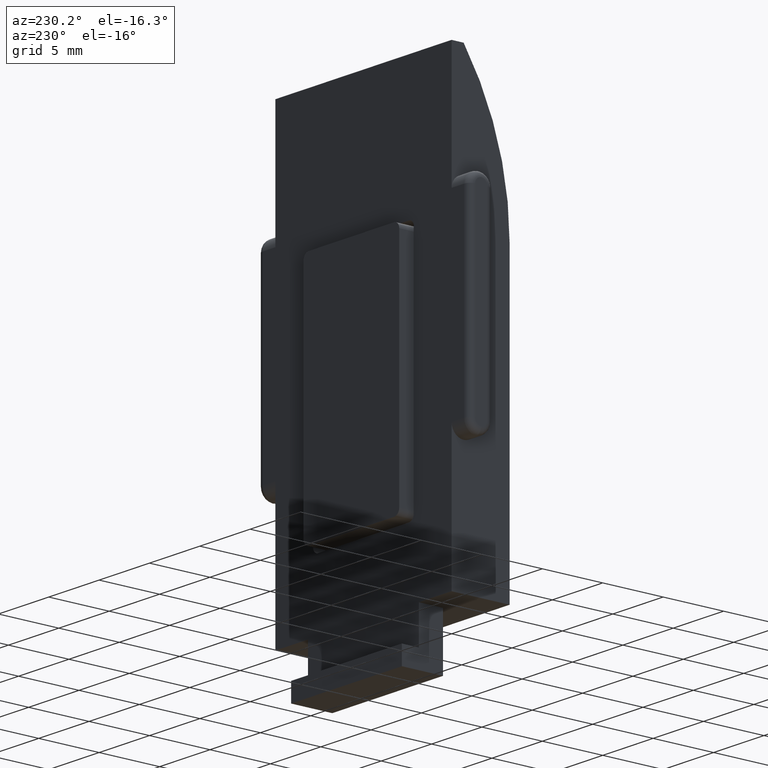
[diagram: clean part render]
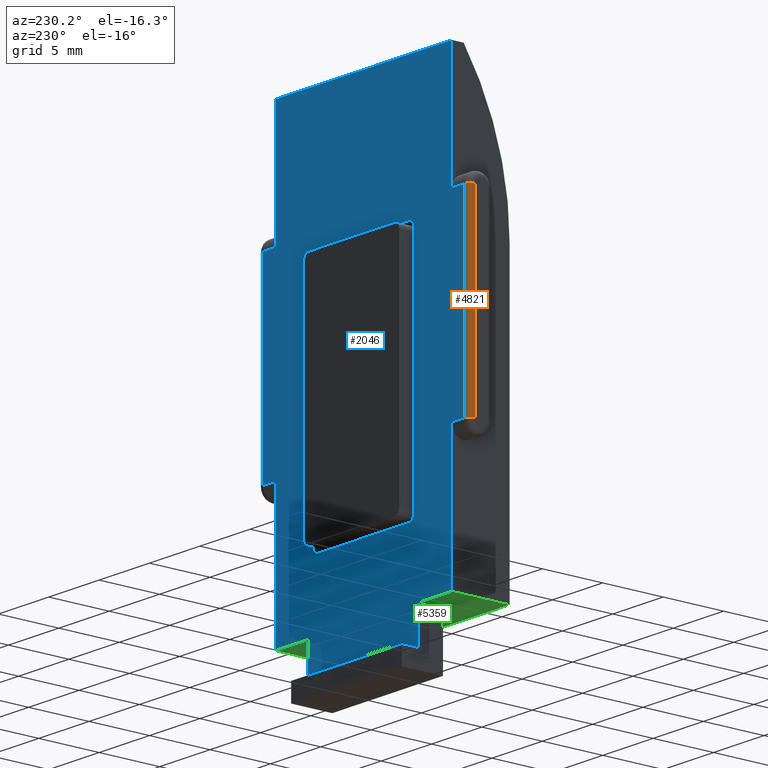
[diagram: same view with three faces highlighted in distinct colors, each labeled with its STEP entity id]
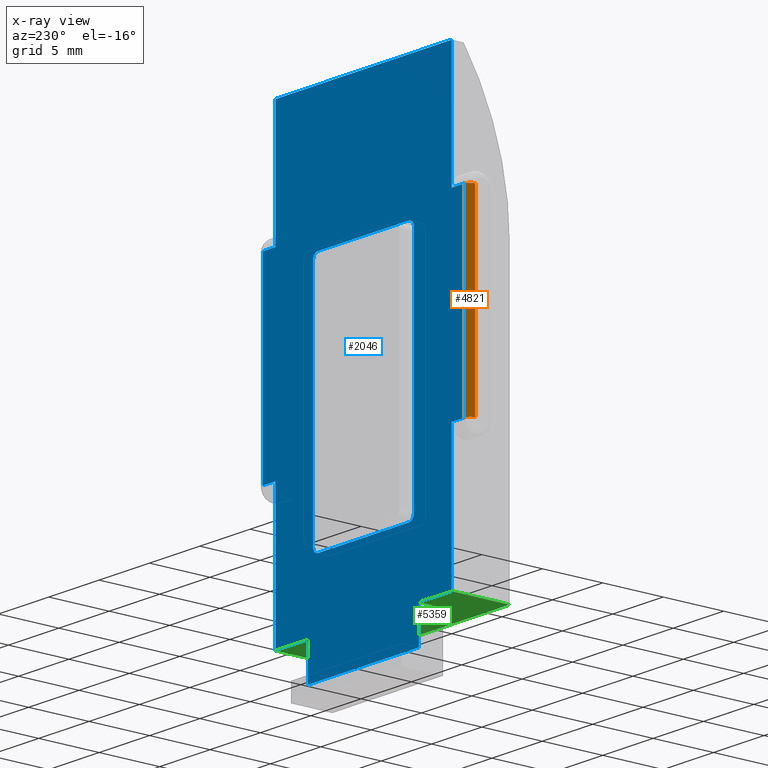
[diagram: x-ray of the same camera — body ghosted, the three highlighted faces saturated]
A machine part, auxiliary view with three faces highlighted in distinct colors.
The next image is the same camera in x-ray (body ghosted, the three faces saturated) — at least one of them is partly hidden behind the body in this view.
Their STEP definitions:

[orange] entity #4821 — the highlighted cylindrical surface (edge-blend (fillet) strip) has radius 0.5 mm, axis along (0, 0, -1).
#786 = CARTESIAN_POINT ( 'NONE',  ( -10.00000000000000200, 4.799999999999995400, 26.71000000000000100 ) ) ;
#976 = VERTEX_POINT ( 'NONE', #7767 ) ;
#1222 = CIRCLE ( 'NONE', #1319, 0.5000000000000004400 ) ;
#1319 = AXIS2_PLACEMENT_3D ( 'NONE', #2228, #3984, #6266 ) ;
#1465 = EDGE_LOOP ( 'NONE', ( #6194, #10480, #5885, #3326 ) ) ;
#2031 = DIRECTION ( 'NONE',  ( 0.0000000000000000000, 1.317178037947461600E-016, -1.000000000000000000 ) ) ;
#2228 = CARTESIAN_POINT ( 'NONE',  ( -10.00000000000000000, 4.299999999999996300, 11.21000000000000100 ) ) ;
#2344 = DIRECTION ( 'NONE',  ( 0.0000000000000000000, -1.317178037947461600E-016, 1.000000000000000000 ) ) ;
#2607 = DIRECTION ( 'NONE',  ( -0.0000000000000000000, 1.317178037947461600E-016, -1.000000000000000000 ) ) ;
#2966 = EDGE_CURVE ( 'NONE', #976, #7220, #3003, .T. ) ;
#3003 = LINE ( 'NONE', #9994, #4424 ) ;
#3326 = ORIENTED_EDGE ( 'NONE', *, *, #10086, .F. ) ;
#3336 = LINE ( 'NONE', #786, #7187 ) ;
#3439 = CARTESIAN_POINT ( 'NONE',  ( -10.50000000000000000, 4.299999999999996300, 11.21000000000000100 ) ) ;
#3498 = VERTEX_POINT ( 'NONE', #6458 ) ;
#3642 = CARTESIAN_POINT ( 'NONE',  ( -10.00000000000000000, 4.799999999999997200, 11.21000000000000100 ) ) ;
#3884 = DIRECTION ( 'NONE',  ( -1.000000000000000000, 0.0000000000000000000, 0.0000000000000000000 ) ) ;
#3984 = DIRECTION ( 'NONE',  ( 0.0000000000000000000, -0.0000000000000000000, 1.000000000000000000 ) ) ;
#4424 = VECTOR ( 'NONE', #2607, 1000.000000000000000 ) ;
#4570 = EDGE_CURVE ( 'NONE', #976, #3498, #9214, .T. ) ;
#4821 = ADVANCED_FACE ( 'NONE', ( #5727 ), #9573, .T. ) ;
#4934 = AXIS2_PLACEMENT_3D ( 'NONE', #10132, #2031, #5309 ) ;
#5309 = DIRECTION ( 'NONE',  ( 0.0000000000000000000, 1.000000000000000000, 0.0000000000000000000 ) ) ;
#5727 = FACE_OUTER_BOUND ( 'NONE', #1465, .T. ) ;
#5885 = ORIENTED_EDGE ( 'NONE', *, *, #4570, .T. ) ;
#6194 = ORIENTED_EDGE ( 'NONE', *, *, #8314, .T. ) ;
#6266 = DIRECTION ( 'NONE',  ( 1.000000000000000000, 0.0000000000000000000, 0.0000000000000000000 ) ) ;
#6312 = DIRECTION ( 'NONE',  ( 0.0000000000000000000, 0.0000000000000000000, -1.000000000000000000 ) ) ;
#6458 = CARTESIAN_POINT ( 'NONE',  ( -10.00000000000000000, 4.799999999999998900, 26.71000000000000100 ) ) ;
#6552 = VERTEX_POINT ( 'NONE', #3642 ) ;
#7187 = VECTOR ( 'NONE', #2344, 1000.000000000000000 ) ;
#7220 = VERTEX_POINT ( 'NONE', #3439 ) ;
#7767 = CARTESIAN_POINT ( 'NONE',  ( -10.50000000000000000, 4.299999999999998000, 26.71000000000000100 ) ) ;
#8314 = EDGE_CURVE ( 'NONE', #6552, #7220, #1222, .T. ) ;
#8456 = AXIS2_PLACEMENT_3D ( 'NONE', #8805, #6312, #3884 ) ;
#8805 = CARTESIAN_POINT ( 'NONE',  ( -10.00000000000000000, 4.299999999999998000, 26.71000000000000100 ) ) ;
#9214 = CIRCLE ( 'NONE', #8456, 0.5000000000000004400 ) ;
#9573 = CYLINDRICAL_SURFACE ( 'NONE', #4934, 0.5000000000000004400 ) ;
#9994 = CARTESIAN_POINT ( 'NONE',  ( -10.50000000000000000, 4.299999999999998000, 11.21000000000000100 ) ) ;
#10086 = EDGE_CURVE ( 'NONE', #6552, #3498, #3336, .T. ) ;
#10132 = CARTESIAN_POINT ( 'NONE',  ( -10.00000000000000200, 4.299999999999999800, -2.999999999999999100 ) ) ;
#10480 = ORIENTED_EDGE ( 'NONE', *, *, #2966, .F. ) ;

[blue] entity #2046 — the highlighted planar face has unit normal (0, -1, -0).
#169 = EDGE_CURVE ( 'NONE', #9250, #3781, #9323, .T. ) ;
#279 = EDGE_CURVE ( 'NONE', #6552, #5575, #1384, .T. ) ;
#348 = VECTOR ( 'NONE', #4048, 1000.000000000000000 ) ;
#386 = ORIENTED_EDGE ( 'NONE', *, *, #9781, .F. ) ;
#574 = ORIENTED_EDGE ( 'NONE', *, *, #768, .F. ) ;
#649 = CARTESIAN_POINT ( 'NONE',  ( 10.00000000000000000, 4.799999999999998900, 26.71000000000000100 ) ) ;
#717 = VERTEX_POINT ( 'NONE', #5660 ) ;
#755 = CARTESIAN_POINT ( 'NONE',  ( 4.999999999999998200, 4.799999999999998900, 5.999999999999999100 ) ) ;
#768 = EDGE_CURVE ( 'NONE', #9511, #9250, #9445, .T. ) ;
#786 = CARTESIAN_POINT ( 'NONE',  ( -10.00000000000000200, 4.799999999999995400, 26.71000000000000100 ) ) ;
#795 = DIRECTION ( 'NONE',  ( 0.0000000000000000000, 1.000000000000000000, 1.351732578683226700E-016 ) ) ;
#797 = CARTESIAN_POINT ( 'NONE',  ( -5.500000000000000000, 4.799999999999999800, 0.0000000000000000000 ) ) ;
#853 = DIRECTION ( 'NONE',  ( 0.0000000000000000000, -1.317178037947461600E-016, 1.000000000000000000 ) ) ;
#879 = ORIENTED_EDGE ( 'NONE', *, *, #6294, .F. ) ;
#917 = EDGE_CURVE ( 'NONE', #9369, #7729, #7281, .T. ) ;
#944 = CARTESIAN_POINT ( 'NONE',  ( 8.750000000000000000, 4.799999999999995400, 26.71000000000000100 ) ) ;
#1001 = VECTOR ( 'NONE', #7784, 1000.000000000000000 ) ;
#1111 = ORIENTED_EDGE ( 'NONE', *, *, #6686, .T. ) ;
#1227 = ORIENTED_EDGE ( 'NONE', *, *, #8849, .F. ) ;
#1290 = ORIENTED_EDGE ( 'NONE', *, *, #169, .F. ) ;
#1384 = LINE ( 'NONE', #6819, #10329 ) ;
#1386 = CARTESIAN_POINT ( 'NONE',  ( 8.750000000000000000, 4.799999999999999800, -2.999999999999999100 ) ) ;
#1445 = VERTEX_POINT ( 'NONE', #6040 ) ;
#1479 = ORIENTED_EDGE ( 'NONE', *, *, #2245, .F. ) ;
#1490 = VECTOR ( 'NONE', #6207, 1000.000000000000000 ) ;
#1554 = CARTESIAN_POINT ( 'NONE',  ( 5.499999999999999100, 4.799999999999999800, -2.999999999999999100 ) ) ;
#1601 = VERTEX_POINT ( 'NONE', #8511 ) ;
#1643 = CARTESIAN_POINT ( 'NONE',  ( 5.499999999999999100, 4.799999999999999800, 0.0000000000000000000 ) ) ;
#1787 = CARTESIAN_POINT ( 'NONE',  ( 10.50000000000000000, 4.799999999999998900, 26.71000000000000100 ) ) ;
#1813 = DIRECTION ( 'NONE',  ( 0.0000000000000000000, 0.0000000000000000000, 1.000000000000000000 ) ) ;
#1819 = DIRECTION ( 'NONE',  ( 1.000000000000000000, -0.0000000000000000000, -0.0000000000000000000 ) ) ;
#1848 = DIRECTION ( 'NONE',  ( 0.0000000000000000000, 1.000000000000000000, 1.351732578683226700E-016 ) ) ;
#1980 = CARTESIAN_POINT ( 'NONE',  ( -5.000000000000005300, 4.799999999999996300, 24.99999999999999300 ) ) ;
#2040 = VERTEX_POINT ( 'NONE', #7455 ) ;
#2046 = ADVANCED_FACE ( 'NONE', ( #9674, #6351 ), #6658, .F. ) ;
#2165 = DIRECTION ( 'NONE',  ( 0.0000000000000000000, 0.0000000000000000000, -1.000000000000000000 ) ) ;
#2169 = ORIENTED_EDGE ( 'NONE', *, *, #8781, .T. ) ;
#2245 = EDGE_CURVE ( 'NONE', #5532, #3639, #4562, .T. ) ;
#2344 = DIRECTION ( 'NONE',  ( 0.0000000000000000000, -1.317178037947461600E-016, 1.000000000000000000 ) ) ;
#2377 = CARTESIAN_POINT ( 'NONE',  ( 4.999999999999994700, 4.799999999999996300, 24.99999999999999600 ) ) ;
#2385 = VECTOR ( 'NONE', #8944, 1000.000000000000000 ) ;
#2393 = VERTEX_POINT ( 'NONE', #9915 ) ;
#2566 = DIRECTION ( 'NONE',  ( 0.0000000000000000000, -1.317178037947461600E-016, 1.000000000000000000 ) ) ;
#2608 = EDGE_CURVE ( 'NONE', #717, #9012, #8925, .T. ) ;
#2658 = LINE ( 'NONE', #5576, #6607 ) ;
#2675 = VECTOR ( 'NONE', #9363, 1000.000000000000000 ) ;
#2735 = EDGE_CURVE ( 'NONE', #9511, #9141, #5570, .T. ) ;
#2917 = ORIENTED_EDGE ( 'NONE', *, *, #4940, .F. ) ;
#2935 = VERTEX_POINT ( 'NONE', #8492 ) ;
#3154 = LINE ( 'NONE', #8509, #1001 ) ;
#3177 = CARTESIAN_POINT ( 'NONE',  ( -8.750000000000000000, 4.799999999999999800, -2.999999999999999100 ) ) ;
#3206 = AXIS2_PLACEMENT_3D ( 'NONE', #3321, #5057, #6617 ) ;
#3321 = CARTESIAN_POINT ( 'NONE',  ( 8.750000000000000000, 4.799999999999999800, -2.999999999999999100 ) ) ;
#3336 = LINE ( 'NONE', #786, #7187 ) ;
#3347 = EDGE_CURVE ( 'NONE', #2393, #9846, #9652, .T. ) ;
#3416 = CARTESIAN_POINT ( 'NONE',  ( -5.000000000000002700, 4.799999999999998900, 6.000000000000002700 ) ) ;
#3498 = VERTEX_POINT ( 'NONE', #6458 ) ;
#3558 = CARTESIAN_POINT ( 'NONE',  ( 8.750000000000000000, 4.799999999999999800, -2.999999999999999100 ) ) ;
#3639 = VERTEX_POINT ( 'NONE', #755 ) ;
#3642 = CARTESIAN_POINT ( 'NONE',  ( -10.00000000000000000, 4.799999999999997200, 11.21000000000000100 ) ) ;
#3648 = CARTESIAN_POINT ( 'NONE',  ( 10.00000000000000000, 4.799999999999998000, 11.21000000000000100 ) ) ;
#3701 = EDGE_LOOP ( 'NONE', ( #8200, #4912, #8003, #1111, #2917, #1290, #574, #10346, #2169, #5025, #7614, #9322, #5022, #7988, #9107, #5640 ) ) ;
#3746 = VECTOR ( 'NONE', #5465, 1000.000000000000000 ) ;
#3762 = ORIENTED_EDGE ( 'NONE', *, *, #6803, .F. ) ;
#3781 = VERTEX_POINT ( 'NONE', #10371 ) ;
#3845 = CIRCLE ( 'NONE', #4884, 0.5000000000000004400 ) ;
#3872 = EDGE_CURVE ( 'NONE', #9012, #2040, #4667, .T. ) ;
#3902 = CARTESIAN_POINT ( 'NONE',  ( -5.000000000000005300, 4.799999999999996300, 24.99999999999999300 ) ) ;
#4048 = DIRECTION ( 'NONE',  ( -1.000000000000000000, 0.0000000000000000000, 0.0000000000000000000 ) ) ;
#4100 = DIRECTION ( 'NONE',  ( -1.000000000000000000, -0.0000000000000000000, -0.0000000000000000000 ) ) ;
#4147 = VERTEX_POINT ( 'NONE', #8676 ) ;
#4193 = VECTOR ( 'NONE', #6555, 1000.000000000000000 ) ;
#4330 = EDGE_CURVE ( 'NONE', #9369, #9846, #8832, .T. ) ;
#4449 = VECTOR ( 'NONE', #2566, 1000.000000000000000 ) ;
#4562 = LINE ( 'NONE', #2377, #2385 ) ;
#4667 = LINE ( 'NONE', #6448, #348 ) ;
#4700 = DIRECTION ( 'NONE',  ( 1.000000000000000000, 0.0000000000000000000, -3.854941057726237600E-016 ) ) ;
#4805 = DIRECTION ( 'NONE',  ( 0.0000000000000000000, -1.317178037947461600E-016, 1.000000000000000000 ) ) ;
#4871 = CARTESIAN_POINT ( 'NONE',  ( 8.750000000000000000, 4.799999999999999800, 0.0000000000000000000 ) ) ;
#4884 = AXIS2_PLACEMENT_3D ( 'NONE', #5876, #6712, #1813 ) ;
#4907 = LINE ( 'NONE', #1386, #7980 ) ;
#4912 = ORIENTED_EDGE ( 'NONE', *, *, #10086, .T. ) ;
#4918 = CARTESIAN_POINT ( 'NONE',  ( -5.500000000000000000, 4.799999999999999800, -2.999999999999999100 ) ) ;
#4940 = EDGE_CURVE ( 'NONE', #3781, #1601, #8822, .T. ) ;
#5007 = CARTESIAN_POINT ( 'NONE',  ( 8.750000000000000000, 4.799999999999999800, -2.999999999999999100 ) ) ;
#5015 = CARTESIAN_POINT ( 'NONE',  ( 10.00000000000000000, 4.799999999999997200, 11.21000000000000100 ) ) ;
#5022 = ORIENTED_EDGE ( 'NONE', *, *, #9374, .T. ) ;
#5025 = ORIENTED_EDGE ( 'NONE', *, *, #917, .F. ) ;
#5057 = DIRECTION ( 'NONE',  ( 0.0000000000000000000, -1.000000000000000000, -1.317178037947461600E-016 ) ) ;
#5070 = VECTOR ( 'NONE', #8671, 1000.000000000000000 ) ;
#5104 = DIRECTION ( 'NONE',  ( 0.0000000000000000000, 0.0000000000000000000, 1.000000000000000000 ) ) ;
#5129 = ORIENTED_EDGE ( 'NONE', *, *, #7619, .F. ) ;
#5298 = DIRECTION ( 'NONE',  ( -0.0000000000000000000, 1.317178037947461600E-016, -1.000000000000000000 ) ) ;
#5439 = VECTOR ( 'NONE', #853, 1000.000000000000000 ) ;
#5465 = DIRECTION ( 'NONE',  ( -1.000000000000000000, -0.0000000000000000000, -0.0000000000000000000 ) ) ;
#5532 = VERTEX_POINT ( 'NONE', #9611 ) ;
#5548 = EDGE_CURVE ( 'NONE', #2040, #5575, #7915, .T. ) ;
#5570 = LINE ( 'NONE', #3648, #8664 ) ;
#5575 = VERTEX_POINT ( 'NONE', #7338 ) ;
#5576 = CARTESIAN_POINT ( 'NONE',  ( -4.500000000000005300, 4.799999999999996300, 25.50000000000000000 ) ) ;
#5610 = CARTESIAN_POINT ( 'NONE',  ( -10.50000000000000000, 4.799999999999998900, 26.71000000000000100 ) ) ;
#5640 = ORIENTED_EDGE ( 'NONE', *, *, #5548, .T. ) ;
#5660 = CARTESIAN_POINT ( 'NONE',  ( -5.500000000000000000, 4.799999999999999800, -2.999999999999999100 ) ) ;
#5720 = VECTOR ( 'NONE', #9676, 1000.000000000000000 ) ;
#5876 = CARTESIAN_POINT ( 'NONE',  ( -4.500000000000005300, 4.799999999999996300, 24.99999999999999300 ) ) ;
#5917 = CARTESIAN_POINT ( 'NONE',  ( -4.500000000000002700, 4.799999999999998900, 6.000000000000002700 ) ) ;
#5962 = LINE ( 'NONE', #10244, #1490 ) ;
#5991 = ORIENTED_EDGE ( 'NONE', *, *, #9560, .F. ) ;
#6040 = CARTESIAN_POINT ( 'NONE',  ( 4.499999999999999100, 4.799999999999998900, 5.500000000000000900 ) ) ;
#6057 = VERTEX_POINT ( 'NONE', #8348 ) ;
#6061 = VERTEX_POINT ( 'NONE', #3416 ) ;
#6166 = AXIS2_PLACEMENT_3D ( 'NONE', #5917, #1848, #5104 ) ;
#6207 = DIRECTION ( 'NONE',  ( -1.000000000000000000, -0.0000000000000000000, 1.927470528863118800E-016 ) ) ;
#6231 = DIRECTION ( 'NONE',  ( -1.000000000000000000, -0.0000000000000000000, -0.0000000000000000000 ) ) ;
#6294 = EDGE_CURVE ( 'NONE', #2935, #4147, #2658, .T. ) ;
#6299 = VECTOR ( 'NONE', #7280, 1000.000000000000000 ) ;
#6309 = AXIS2_PLACEMENT_3D ( 'NONE', #9018, #795, #9096 ) ;
#6311 = ORIENTED_EDGE ( 'NONE', *, *, #9549, .F. ) ;
#6351 = FACE_OUTER_BOUND ( 'NONE', #3701, .T. ) ;
#6363 = VERTEX_POINT ( 'NONE', #3902 ) ;
#6431 = CIRCLE ( 'NONE', #6798, 0.4999999999999995600 ) ;
#6448 = CARTESIAN_POINT ( 'NONE',  ( 8.750000000000000000, 4.799999999999999800, 0.0000000000000000000 ) ) ;
#6458 = CARTESIAN_POINT ( 'NONE',  ( -10.00000000000000000, 4.799999999999998900, 26.71000000000000100 ) ) ;
#6552 = VERTEX_POINT ( 'NONE', #3642 ) ;
#6555 = DIRECTION ( 'NONE',  ( -1.000000000000000000, -0.0000000000000000000, -0.0000000000000000000 ) ) ;
#6607 = VECTOR ( 'NONE', #4700, 1000.000000000000000 ) ;
#6617 = DIRECTION ( 'NONE',  ( 0.0000000000000000000, 1.317178037947461600E-016, -1.000000000000000000 ) ) ;
#6658 = PLANE ( 'NONE',  #3206 ) ;
#6686 = EDGE_CURVE ( 'NONE', #6057, #1601, #3154, .T. ) ;
#6712 = DIRECTION ( 'NONE',  ( 0.0000000000000000000, 1.000000000000000000, 1.351732578683226700E-016 ) ) ;
#6771 = VECTOR ( 'NONE', #9069, 1000.000000000000000 ) ;
#6798 = AXIS2_PLACEMENT_3D ( 'NONE', #9612, #8847, #2165 ) ;
#6803 = EDGE_CURVE ( 'NONE', #1445, #8703, #5962, .T. ) ;
#6819 = CARTESIAN_POINT ( 'NONE',  ( -10.50000000000000000, 4.799999999999997200, 11.21000000000000100 ) ) ;
#6969 = LINE ( 'NONE', #5610, #6299 ) ;
#7187 = VECTOR ( 'NONE', #2344, 1000.000000000000000 ) ;
#7280 = DIRECTION ( 'NONE',  ( 1.000000000000000000, -0.0000000000000000000, -0.0000000000000000000 ) ) ;
#7281 = LINE ( 'NONE', #3558, #2675 ) ;
#7298 = EDGE_LOOP ( 'NONE', ( #3762, #1227, #1479, #386, #879, #5991, #5129, #6311 ) ) ;
#7338 = CARTESIAN_POINT ( 'NONE',  ( -8.750000000000000000, 4.799999999999998000, 11.21000000000000100 ) ) ;
#7455 = CARTESIAN_POINT ( 'NONE',  ( -8.750000000000000000, 4.799999999999998900, 0.0000000000000000000 ) ) ;
#7614 = ORIENTED_EDGE ( 'NONE', *, *, #4330, .T. ) ;
#7619 = EDGE_CURVE ( 'NONE', #6061, #6363, #8014, .T. ) ;
#7646 = VECTOR ( 'NONE', #4805, 1000.000000000000000 ) ;
#7729 = VERTEX_POINT ( 'NONE', #9641 ) ;
#7784 = DIRECTION ( 'NONE',  ( 0.0000000000000000000, -1.317178037947461600E-016, 1.000000000000000000 ) ) ;
#7915 = LINE ( 'NONE', #3177, #5720 ) ;
#7980 = VECTOR ( 'NONE', #6231, 1000.000000000000000 ) ;
#7988 = ORIENTED_EDGE ( 'NONE', *, *, #2608, .T. ) ;
#7997 = CARTESIAN_POINT ( 'NONE',  ( 10.50000000000000000, 4.799999999999997200, 11.21000000000000100 ) ) ;
#8003 = ORIENTED_EDGE ( 'NONE', *, *, #8740, .T. ) ;
#8014 = LINE ( 'NONE', #1980, #5070 ) ;
#8086 = CIRCLE ( 'NONE', #6309, 0.4999999999999970000 ) ;
#8099 = CIRCLE ( 'NONE', #6166, 0.5000000000000004400 ) ;
#8200 = ORIENTED_EDGE ( 'NONE', *, *, #279, .F. ) ;
#8326 = VECTOR ( 'NONE', #4100, 1000.000000000000000 ) ;
#8348 = CARTESIAN_POINT ( 'NONE',  ( -8.750000000000000000, 4.799999999999998900, 26.71000000000000100 ) ) ;
#8492 = CARTESIAN_POINT ( 'NONE',  ( -4.500000000000005300, 4.799999999999996300, 25.49999999999999600 ) ) ;
#8509 = CARTESIAN_POINT ( 'NONE',  ( -8.750000000000000000, 4.799999999999999800, -2.999999999999999100 ) ) ;
#8511 = CARTESIAN_POINT ( 'NONE',  ( -8.750000000000000000, 4.799999999999994500, 36.50999999999999800 ) ) ;
#8664 = VECTOR ( 'NONE', #5298, 1000.000000000000000 ) ;
#8671 = DIRECTION ( 'NONE',  ( -2.282530889443168000E-016, -1.369518533665900800E-016, 1.000000000000000000 ) ) ;
#8676 = CARTESIAN_POINT ( 'NONE',  ( 4.499999999999995600, 4.799999999999996300, 25.49999999999999600 ) ) ;
#8703 = VERTEX_POINT ( 'NONE', #8861 ) ;
#8740 = EDGE_CURVE ( 'NONE', #3498, #6057, #6969, .T. ) ;
#8781 = EDGE_CURVE ( 'NONE', #9141, #7729, #9159, .T. ) ;
#8822 = LINE ( 'NONE', #9658, #4193 ) ;
#8832 = LINE ( 'NONE', #4871, #6771 ) ;
#8847 = DIRECTION ( 'NONE',  ( 0.0000000000000000000, 1.000000000000000000, 1.351732578683226700E-016 ) ) ;
#8849 = EDGE_CURVE ( 'NONE', #3639, #1445, #6431, .T. ) ;
#8861 = CARTESIAN_POINT ( 'NONE',  ( -4.500000000000002700, 4.799999999999998900, 5.500000000000000900 ) ) ;
#8925 = LINE ( 'NONE', #4918, #5439 ) ;
#8944 = DIRECTION ( 'NONE',  ( 1.826024711554533900E-016, 1.369518533665900300E-016, -1.000000000000000000 ) ) ;
#9012 = VERTEX_POINT ( 'NONE', #797 ) ;
#9018 = CARTESIAN_POINT ( 'NONE',  ( 4.499999999999995600, 4.799999999999996300, 24.99999999999999600 ) ) ;
#9069 = DIRECTION ( 'NONE',  ( -1.000000000000000000, 0.0000000000000000000, 0.0000000000000000000 ) ) ;
#9096 = DIRECTION ( 'NONE',  ( 0.0000000000000000000, 0.0000000000000000000, 1.000000000000000000 ) ) ;
#9107 = ORIENTED_EDGE ( 'NONE', *, *, #3872, .T. ) ;
#9141 = VERTEX_POINT ( 'NONE', #5015 ) ;
#9159 = LINE ( 'NONE', #7997, #3746 ) ;
#9250 = VERTEX_POINT ( 'NONE', #944 ) ;
#9322 = ORIENTED_EDGE ( 'NONE', *, *, #3347, .F. ) ;
#9323 = LINE ( 'NONE', #5007, #4449 ) ;
#9363 = DIRECTION ( 'NONE',  ( 0.0000000000000000000, -1.317178037947461600E-016, 1.000000000000000000 ) ) ;
#9369 = VERTEX_POINT ( 'NONE', #10300 ) ;
#9374 = EDGE_CURVE ( 'NONE', #2393, #717, #4907, .T. ) ;
#9445 = LINE ( 'NONE', #1787, #8326 ) ;
#9511 = VERTEX_POINT ( 'NONE', #649 ) ;
#9549 = EDGE_CURVE ( 'NONE', #8703, #6061, #8099, .T. ) ;
#9560 = EDGE_CURVE ( 'NONE', #6363, #2935, #3845, .T. ) ;
#9611 = CARTESIAN_POINT ( 'NONE',  ( 4.999999999999993800, 4.799999999999996300, 24.99999999999999600 ) ) ;
#9612 = CARTESIAN_POINT ( 'NONE',  ( 4.499999999999999100, 4.799999999999998900, 5.999999999999999100 ) ) ;
#9641 = CARTESIAN_POINT ( 'NONE',  ( 8.750000000000000000, 4.799999999999998000, 11.21000000000000100 ) ) ;
#9652 = LINE ( 'NONE', #1554, #7646 ) ;
#9658 = CARTESIAN_POINT ( 'NONE',  ( 8.750000000000000000, 4.799999999999994500, 36.50999999999999800 ) ) ;
#9674 = FACE_BOUND ( 'NONE', #7298, .T. ) ;
#9676 = DIRECTION ( 'NONE',  ( 0.0000000000000000000, -1.317178037947461600E-016, 1.000000000000000000 ) ) ;
#9781 = EDGE_CURVE ( 'NONE', #4147, #5532, #8086, .T. ) ;
#9846 = VERTEX_POINT ( 'NONE', #1643 ) ;
#9915 = CARTESIAN_POINT ( 'NONE',  ( 5.499999999999999100, 4.799999999999999800, -2.999999999999999100 ) ) ;
#10086 = EDGE_CURVE ( 'NONE', #6552, #3498, #3336, .T. ) ;
#10244 = CARTESIAN_POINT ( 'NONE',  ( -4.500000000000002700, 4.799999999999998900, 5.500000000000000900 ) ) ;
#10300 = CARTESIAN_POINT ( 'NONE',  ( 8.750000000000000000, 4.799999999999999800, 0.0000000000000000000 ) ) ;
#10329 = VECTOR ( 'NONE', #1819, 1000.000000000000000 ) ;
#10346 = ORIENTED_EDGE ( 'NONE', *, *, #2735, .T. ) ;
#10371 = CARTESIAN_POINT ( 'NONE',  ( 8.750000000000000000, 4.799999999999994500, 36.50999999999999800 ) ) ;

[green] entity #5359 — the highlighted planar face has unit normal (0, 0, 1).
#100 = EDGE_CURVE ( 'NONE', #9846, #10277, #1654, .T. ) ;
#194 = ORIENTED_EDGE ( 'NONE', *, *, #100, .F. ) ;
#345 = EDGE_CURVE ( 'NONE', #10277, #5940, #3815, .T. ) ;
#348 = VECTOR ( 'NONE', #4048, 1000.000000000000000 ) ;
#605 = LINE ( 'NONE', #2641, #5211 ) ;
#797 = CARTESIAN_POINT ( 'NONE',  ( -5.500000000000000000, 4.799999999999999800, 0.0000000000000000000 ) ) ;
#845 = ORIENTED_EDGE ( 'NONE', *, *, #7987, .F. ) ;
#1022 = DIRECTION ( 'NONE',  ( 0.0000000000000000000, 1.000000000000000000, 0.0000000000000000000 ) ) ;
#1155 = CARTESIAN_POINT ( 'NONE',  ( -5.500000000000000000, -2.011796096998362200E-015, 0.0000000000000000000 ) ) ;
#1567 = CARTESIAN_POINT ( 'NONE',  ( -5.500000000000000000, 2.799999999999998900, 0.0000000000000000000 ) ) ;
#1641 = VERTEX_POINT ( 'NONE', #10181 ) ;
#1643 = CARTESIAN_POINT ( 'NONE',  ( 5.499999999999999100, 4.799999999999999800, 0.0000000000000000000 ) ) ;
#1654 = LINE ( 'NONE', #7403, #6766 ) ;
#1830 = CARTESIAN_POINT ( 'NONE',  ( 8.750000000000000000, 0.0000000000000000000, 0.0000000000000000000 ) ) ;
#1937 = CARTESIAN_POINT ( 'NONE',  ( 8.750000000000000000, 0.0000000000000000000, 0.0000000000000000000 ) ) ;
#2040 = VERTEX_POINT ( 'NONE', #7455 ) ;
#2373 = EDGE_CURVE ( 'NONE', #1641, #2040, #605, .T. ) ;
#2401 = VECTOR ( 'NONE', #4554, 1000.000000000000000 ) ;
#2641 = CARTESIAN_POINT ( 'NONE',  ( -8.750000000000000000, 0.0000000000000000000, 0.0000000000000000000 ) ) ;
#2710 = CARTESIAN_POINT ( 'NONE',  ( 5.499999999999999100, 2.799999999999998900, 0.0000000000000000000 ) ) ;
#3596 = ORIENTED_EDGE ( 'NONE', *, *, #2373, .T. ) ;
#3626 = EDGE_CURVE ( 'NONE', #10095, #1641, #8414, .T. ) ;
#3815 = LINE ( 'NONE', #7730, #2401 ) ;
#3872 = EDGE_CURVE ( 'NONE', #9012, #2040, #4667, .T. ) ;
#4007 = VECTOR ( 'NONE', #7663, 1000.000000000000000 ) ;
#4048 = DIRECTION ( 'NONE',  ( -1.000000000000000000, 0.0000000000000000000, 0.0000000000000000000 ) ) ;
#4330 = EDGE_CURVE ( 'NONE', #9369, #9846, #8832, .T. ) ;
#4526 = PLANE ( 'NONE',  #8238 ) ;
#4554 = DIRECTION ( 'NONE',  ( -1.000000000000000000, -0.0000000000000000000, -0.0000000000000000000 ) ) ;
#4667 = LINE ( 'NONE', #6448, #348 ) ;
#4798 = EDGE_LOOP ( 'NONE', ( #8374, #3596, #8328, #8524, #6544, #194, #5362, #845 ) ) ;
#4871 = CARTESIAN_POINT ( 'NONE',  ( 8.750000000000000000, 4.799999999999999800, 0.0000000000000000000 ) ) ;
#4895 = DIRECTION ( 'NONE',  ( 0.0000000000000000000, -1.000000000000000000, 0.0000000000000000000 ) ) ;
#5211 = VECTOR ( 'NONE', #9121, 1000.000000000000000 ) ;
#5359 = ADVANCED_FACE ( 'NONE', ( #6887 ), #4526, .F. ) ;
#5362 = ORIENTED_EDGE ( 'NONE', *, *, #4330, .F. ) ;
#5940 = VERTEX_POINT ( 'NONE', #1567 ) ;
#6420 = DIRECTION ( 'NONE',  ( -1.000000000000000000, -0.0000000000000000000, -0.0000000000000000000 ) ) ;
#6448 = CARTESIAN_POINT ( 'NONE',  ( 8.750000000000000000, 4.799999999999999800, 0.0000000000000000000 ) ) ;
#6544 = ORIENTED_EDGE ( 'NONE', *, *, #345, .F. ) ;
#6572 = LINE ( 'NONE', #1155, #4007 ) ;
#6766 = VECTOR ( 'NONE', #4895, 1000.000000000000000 ) ;
#6771 = VECTOR ( 'NONE', #9069, 1000.000000000000000 ) ;
#6887 = FACE_OUTER_BOUND ( 'NONE', #4798, .T. ) ;
#7403 = CARTESIAN_POINT ( 'NONE',  ( 5.499999999999999100, -2.011796096998362200E-015, 0.0000000000000000000 ) ) ;
#7455 = CARTESIAN_POINT ( 'NONE',  ( -8.750000000000000000, 4.799999999999998900, 0.0000000000000000000 ) ) ;
#7638 = VECTOR ( 'NONE', #6420, 1000.000000000000000 ) ;
#7663 = DIRECTION ( 'NONE',  ( 0.0000000000000000000, -1.000000000000000000, 0.0000000000000000000 ) ) ;
#7730 = CARTESIAN_POINT ( 'NONE',  ( 8.750000000000000000, 2.799999999999998900, 0.0000000000000000000 ) ) ;
#7987 = EDGE_CURVE ( 'NONE', #10095, #9369, #8410, .T. ) ;
#8011 = CARTESIAN_POINT ( 'NONE',  ( 8.750000000000000000, 0.0000000000000000000, 0.0000000000000000000 ) ) ;
#8052 = CARTESIAN_POINT ( 'NONE',  ( 8.750000000000000000, 0.0000000000000000000, 0.0000000000000000000 ) ) ;
#8238 = AXIS2_PLACEMENT_3D ( 'NONE', #1937, #8504, #10229 ) ;
#8328 = ORIENTED_EDGE ( 'NONE', *, *, #3872, .F. ) ;
#8374 = ORIENTED_EDGE ( 'NONE', *, *, #3626, .T. ) ;
#8410 = LINE ( 'NONE', #1830, #10153 ) ;
#8414 = LINE ( 'NONE', #8052, #7638 ) ;
#8504 = DIRECTION ( 'NONE',  ( 0.0000000000000000000, 0.0000000000000000000, 1.000000000000000000 ) ) ;
#8524 = ORIENTED_EDGE ( 'NONE', *, *, #8582, .T. ) ;
#8582 = EDGE_CURVE ( 'NONE', #9012, #5940, #6572, .T. ) ;
#8832 = LINE ( 'NONE', #4871, #6771 ) ;
#9012 = VERTEX_POINT ( 'NONE', #797 ) ;
#9069 = DIRECTION ( 'NONE',  ( -1.000000000000000000, 0.0000000000000000000, 0.0000000000000000000 ) ) ;
#9121 = DIRECTION ( 'NONE',  ( 0.0000000000000000000, 1.000000000000000000, 0.0000000000000000000 ) ) ;
#9369 = VERTEX_POINT ( 'NONE', #10300 ) ;
#9846 = VERTEX_POINT ( 'NONE', #1643 ) ;
#10095 = VERTEX_POINT ( 'NONE', #8011 ) ;
#10153 = VECTOR ( 'NONE', #1022, 1000.000000000000000 ) ;
#10181 = CARTESIAN_POINT ( 'NONE',  ( -8.750000000000000000, 0.0000000000000000000, 0.0000000000000000000 ) ) ;
#10229 = DIRECTION ( 'NONE',  ( 1.000000000000000000, 0.0000000000000000000, -0.0000000000000000000 ) ) ;
#10277 = VERTEX_POINT ( 'NONE', #2710 ) ;
#10300 = CARTESIAN_POINT ( 'NONE',  ( 8.750000000000000000, 4.799999999999999800, 0.0000000000000000000 ) ) ;